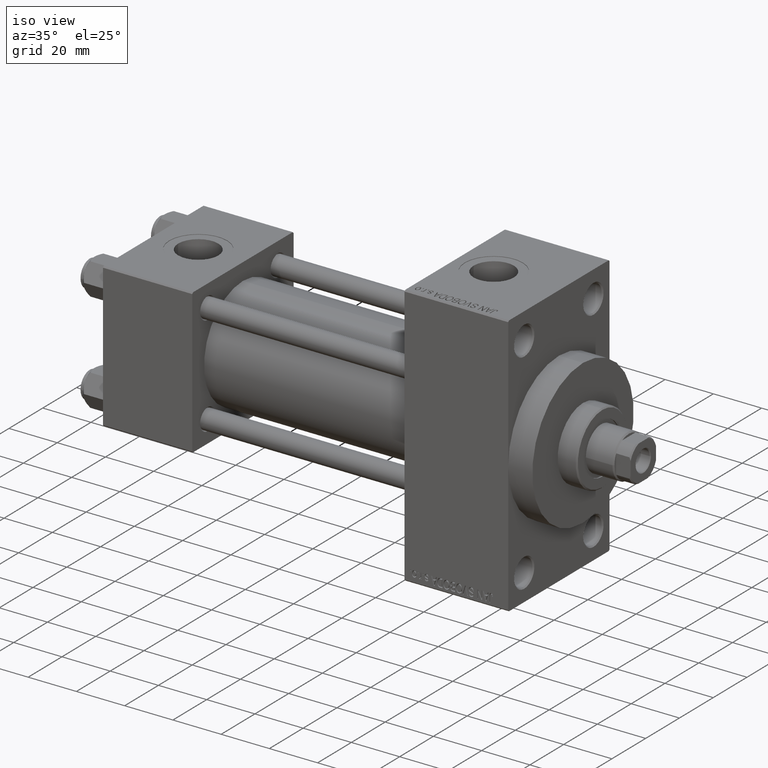
[diagram: clean part render]
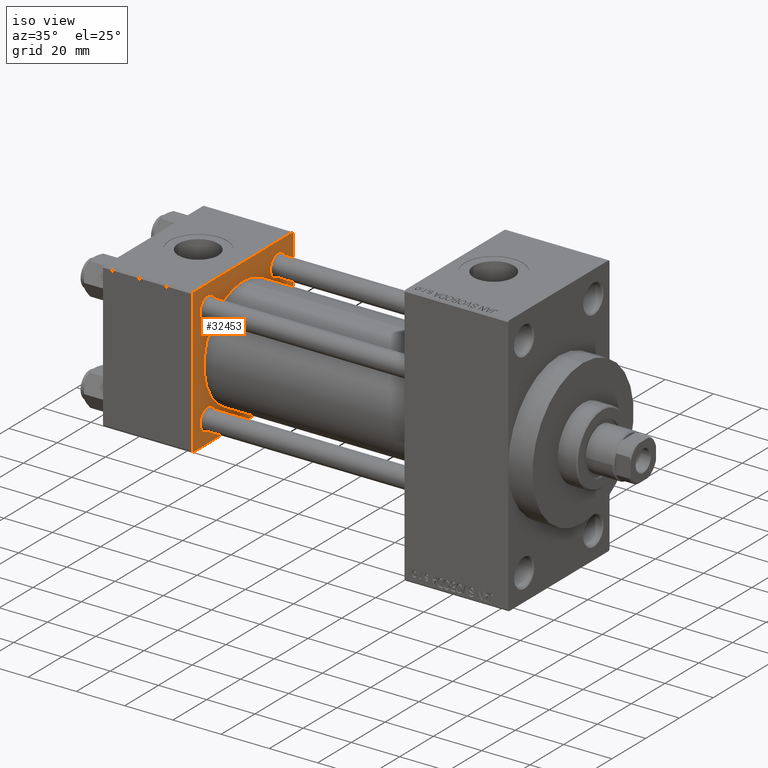
[diagram: same view with one face highlighted and labeled with its STEP entity id]
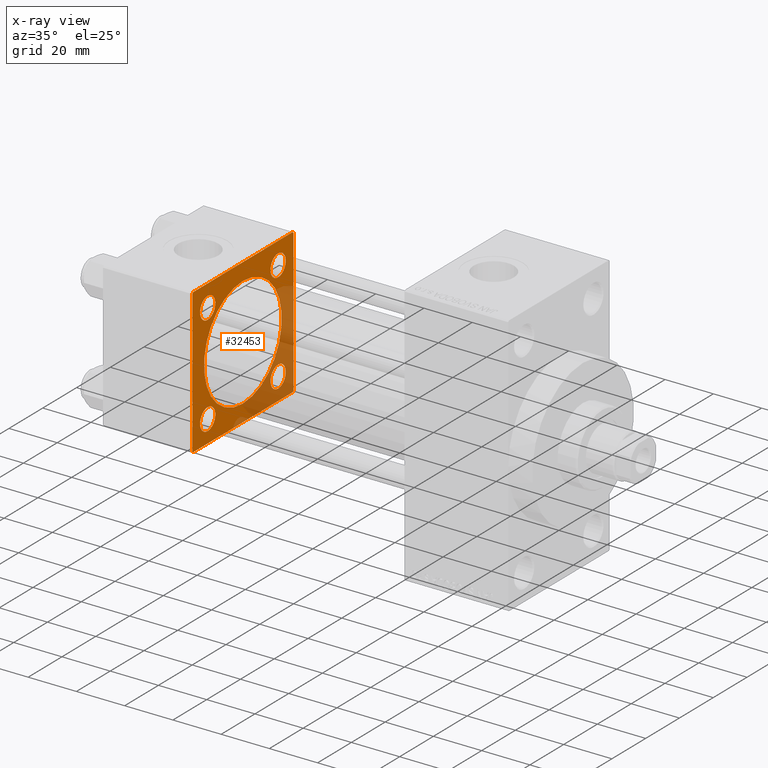
[diagram: x-ray of the same camera — body ghosted, the highlighted face saturated]
A machine part, iso view. The second image highlights one B-rep face of the part: STEP entity #32453.
The next image is the same camera in x-ray: the body ghosted, the highlighted face saturated — about 30% of this face is hidden behind the body in this view.
In plain terms, the highlighted planar face has unit normal (-1, 0, 0).
Its self-contained STEP definition (entity closure, byte-faithful):
#83 = AXIS2_PLACEMENT_3D ( 'NONE', #12860, #42011, #30546 ) ;
#125 = DIRECTION ( 'NONE',  ( 0.000000000000000000, -1.000000000000000000, -1.156482317317871725E-16 ) ) ;
#376 = CARTESIAN_POINT ( 'NONE',  ( 37.00000000000000000, 20.84999999999999787, 16.34999999999996945 ) ) ;
#1126 = DIRECTION ( 'NONE',  ( -1.000000000000000000, 0.000000000000000000, -0.000000000000000000 ) ) ;
#1298 = DIRECTION ( 'NONE',  ( 0.000000000000000000, 0.000000000000000000, 1.000000000000000000 ) ) ;
#1305 = ORIENTED_EDGE ( 'NONE', *, *, #27728, .T. ) ;
#1794 = CARTESIAN_POINT ( 'NONE',  ( 37.00000000000000000, -20.84999999999999076, -20.85000000000000497 ) ) ;
#2285 = EDGE_CURVE ( 'NONE', #9773, #27094, #43550, .T. ) ;
#2668 = EDGE_CURVE ( 'NONE', #14750, #37788, #8470, .T. ) ;
#3233 = CARTESIAN_POINT ( 'NONE',  ( 37.00000000000000000, 29.99999999999999289, 30.00000000000000000 ) ) ;
#3516 = DIRECTION ( 'NONE',  ( 0.000000000000000000, -1.000000000000000000, -1.156482317317871725E-16 ) ) ;
#4010 = CARTESIAN_POINT ( 'NONE',  ( 37.00000000000000000, -20.84999999999999076, 16.34999999999997300 ) ) ;
#4751 = EDGE_CURVE ( 'NONE', #32063, #39989, #6132, .T. ) ;
#5431 = FACE_BOUND ( 'NONE', #45965, .T. ) ;
#5499 = CARTESIAN_POINT ( 'NONE',  ( 37.00000000000000000, 20.84999999999999787, -25.35000000000003340 ) ) ;
#5600 = ORIENTED_EDGE ( 'NONE', *, *, #10545, .T. ) ;
#6006 = EDGE_LOOP ( 'NONE', ( #33298, #26842, #34942, #18190, #30435, #17520, #19745, #34250 ) ) ;
#6066 = DIRECTION ( 'NONE',  ( 0.000000000000000000, 0.000000000000000000, 1.000000000000000000 ) ) ;
#6132 = CIRCLE ( 'NONE', #37406, 23.00000000000000000 ) ;
#6261 = CIRCLE ( 'NONE', #12366, 23.00000000000000000 ) ;
#6714 = EDGE_CURVE ( 'NONE', #30664, #47232, #24500, .T. ) ;
#6986 = EDGE_CURVE ( 'NONE', #23926, #7676, #21102, .T. ) ;
#7201 = CARTESIAN_POINT ( 'NONE',  ( 37.00000000000000000, 20.84999999999999787, -16.34999999999996945 ) ) ;
#7257 = EDGE_LOOP ( 'NONE', ( #19855, #38834 ) ) ;
#7280 = EDGE_CURVE ( 'NONE', #40163, #15332, #14348, .T. ) ;
#7676 = VERTEX_POINT ( 'NONE', #15880 ) ;
#7734 = EDGE_LOOP ( 'NONE', ( #29220, #21842 ) ) ;
#8290 = CARTESIAN_POINT ( 'NONE',  ( 37.00000000000000000, -20.84999999999999076, 20.85000000000000497 ) ) ;
#8428 = CARTESIAN_POINT ( 'NONE',  ( 37.00000000000000711, 2.146024240737016609E-16, -23.00000000000000000 ) ) ;
#8470 = CIRCLE ( 'NONE', #83, 4.500000000000031974 ) ;
#8665 = AXIS2_PLACEMENT_3D ( 'NONE', #19927, #34511, #12765 ) ;
#8825 = EDGE_CURVE ( 'NONE', #39246, #23811, #36702, .T. ) ;
#9212 = VERTEX_POINT ( 'NONE', #41351 ) ;
#9245 = CARTESIAN_POINT ( 'NONE',  ( 37.00000000000000000, 0.000000000000000000, 0.000000000000000000 ) ) ;
#9715 = DIRECTION ( 'NONE',  ( -0.000000000000000000, 0.000000000000000000, 1.000000000000000000 ) ) ;
#9773 = VERTEX_POINT ( 'NONE', #9966 ) ;
#9966 = CARTESIAN_POINT ( 'NONE',  ( 37.00000000000000000, -20.84999999999999076, 25.35000000000003695 ) ) ;
#10100 = CARTESIAN_POINT ( 'NONE',  ( 37.00000000000000000, 29.99999999999999289, 29.50000000000000000 ) ) ;
#10280 = LINE ( 'NONE', #13839, #18460 ) ;
#10545 = EDGE_CURVE ( 'NONE', #27094, #9773, #44869, .T. ) ;
#11333 = AXIS2_PLACEMENT_3D ( 'NONE', #34012, #40964, #1298 ) ;
#11720 = EDGE_CURVE ( 'NONE', #37788, #14750, #18215, .T. ) ;
#12132 = CIRCLE ( 'NONE', #42639, 4.500000000000031974 ) ;
#12366 = AXIS2_PLACEMENT_3D ( 'NONE', #25639, #36884, #18732 ) ;
#12765 = DIRECTION ( 'NONE',  ( 0.000000000000000000, 0.000000000000000000, 1.000000000000000000 ) ) ;
#12860 = CARTESIAN_POINT ( 'NONE',  ( 37.00000000000000000, 20.84999999999999787, 20.85000000000000142 ) ) ;
#12893 = EDGE_CURVE ( 'NONE', #28918, #30723, #12132, .T. ) ;
#12992 = DIRECTION ( 'NONE',  ( -1.000000000000000000, 0.000000000000000000, -0.000000000000000000 ) ) ;
#13349 = DIRECTION ( 'NONE',  ( 1.000000000000000000, -0.000000000000000000, 0.000000000000000000 ) ) ;
#13839 = CARTESIAN_POINT ( 'NONE',  ( 37.00000000000000000, 29.99999999999999289, -29.50000000000000000 ) ) ;
#14348 = LINE ( 'NONE', #28452, #46679 ) ;
#14512 = CARTESIAN_POINT ( 'NONE',  ( 37.00000000000000000, -20.84999999999999076, -20.85000000000000497 ) ) ;
#14570 = CARTESIAN_POINT ( 'NONE',  ( 37.00000000000000000, 20.84999999999999787, -20.85000000000000142 ) ) ;
#14750 = VERTEX_POINT ( 'NONE', #27580 ) ;
#15332 = VERTEX_POINT ( 'NONE', #20769 ) ;
#15880 = CARTESIAN_POINT ( 'NONE',  ( 37.00000000000000000, 29.49999999999999289, 30.00000000000000000 ) ) ;
#15902 = CARTESIAN_POINT ( 'NONE',  ( 37.00000000000000000, -29.50000000000000000, -30.00000000000000711 ) ) ;
#16136 = DIRECTION ( 'NONE',  ( 0.000000000000000000, 0.000000000000000000, 1.000000000000000000 ) ) ;
#16273 = CARTESIAN_POINT ( 'NONE',  ( 37.00000000000000000, -20.84999999999999076, -25.35000000000003695 ) ) ;
#16370 = DIRECTION ( 'NONE',  ( -0.000000000000000000, -0.7071067811865474617, -0.7071067811865474617 ) ) ;
#16461 = CARTESIAN_POINT ( 'NONE',  ( 37.00000000000000711, -2.602085213965210642E-15, 0.000000000000000000 ) ) ;
#16631 = FACE_BOUND ( 'NONE', #43981, .T. ) ;
#16920 = CARTESIAN_POINT ( 'NONE',  ( 37.00000000000000000, 29.99999999999999289, -29.50000000000000000 ) ) ;
#17520 = ORIENTED_EDGE ( 'NONE', *, *, #43076, .T. ) ;
#17782 = CARTESIAN_POINT ( 'NONE',  ( 37.00000000000000000, 29.49999999999999289, 30.00000000000000000 ) ) ;
#18190 = ORIENTED_EDGE ( 'NONE', *, *, #6986, .T. ) ;
#18215 = CIRCLE ( 'NONE', #11333, 4.500000000000031974 ) ;
#18460 = VECTOR ( 'NONE', #38465, 999.9999999999998863 ) ;
#18561 = VECTOR ( 'NONE', #22114, 1000.000000000000114 ) ;
#18732 = DIRECTION ( 'NONE',  ( 0.000000000000000000, 0.000000000000000000, 1.000000000000000000 ) ) ;
#19744 = PLANE ( 'NONE',  #39325 ) ;
#19745 = ORIENTED_EDGE ( 'NONE', *, *, #7280, .T. ) ;
#19809 = EDGE_CURVE ( 'NONE', #39246, #44267, #10280, .T. ) ;
#19855 = ORIENTED_EDGE ( 'NONE', *, *, #24439, .F. ) ;
#19927 = CARTESIAN_POINT ( 'NONE',  ( 37.00000000000000000, 20.84999999999999787, -20.85000000000000142 ) ) ;
#19985 = DIRECTION ( 'NONE',  ( -1.000000000000000000, 0.000000000000000000, -0.000000000000000000 ) ) ;
#20170 = ORIENTED_EDGE ( 'NONE', *, *, #44418, .T. ) ;
#20769 = CARTESIAN_POINT ( 'NONE',  ( 37.00000000000000000, -30.00000000000000000, -29.50000000000001776 ) ) ;
#21102 = LINE ( 'NONE', #17782, #29864 ) ;
#21460 = AXIS2_PLACEMENT_3D ( 'NONE', #1794, #12992, #6066 ) ;
#21842 = ORIENTED_EDGE ( 'NONE', *, *, #2668, .T. ) ;
#22114 = DIRECTION ( 'NONE',  ( 0.000000000000000000, 0.7071067811865474617, -0.7071067811865474617 ) ) ;
#22352 = EDGE_CURVE ( 'NONE', #15332, #23811, #40294, .T. ) ;
#22434 = CARTESIAN_POINT ( 'NONE',  ( 37.00000000000000000, -20.84999999999999076, -16.34999999999997300 ) ) ;
#23617 = DIRECTION ( 'NONE',  ( 0.000000000000000000, 0.000000000000000000, 1.000000000000000000 ) ) ;
#23811 = VERTEX_POINT ( 'NONE', #15902 ) ;
#23926 = VERTEX_POINT ( 'NONE', #10100 ) ;
#24003 = CARTESIAN_POINT ( 'NONE',  ( 37.00000000000000000, -30.00000000000000000, 29.49999999999999289 ) ) ;
#24439 = EDGE_CURVE ( 'NONE', #39989, #32063, #6261, .T. ) ;
#24500 = CIRCLE ( 'NONE', #21460, 4.500000000000031974 ) ;
#24583 = CARTESIAN_POINT ( 'NONE',  ( 37.00000000000000000, -29.50000000000001066, -30.00000000000000711 ) ) ;
#25639 = CARTESIAN_POINT ( 'NONE',  ( 37.00000000000000711, -2.602085213965210642E-15, 0.000000000000000000 ) ) ;
#25781 = DIRECTION ( 'NONE',  ( -1.000000000000000000, 0.000000000000000000, -0.000000000000000000 ) ) ;
#25809 = CARTESIAN_POINT ( 'NONE',  ( 37.00000000000000000, -30.00000000000000000, 29.49999999999999289 ) ) ;
#26286 = VECTOR ( 'NONE', #44866, 1000.000000000000000 ) ;
#26478 = LINE ( 'NONE', #37472, #26286 ) ;
#26842 = ORIENTED_EDGE ( 'NONE', *, *, #19809, .T. ) ;
#27094 = VERTEX_POINT ( 'NONE', #4010 ) ;
#27580 = CARTESIAN_POINT ( 'NONE',  ( 37.00000000000000000, 20.84999999999999787, 25.35000000000003340 ) ) ;
#27617 = FACE_BOUND ( 'NONE', #7257, .T. ) ;
#27728 = EDGE_CURVE ( 'NONE', #30723, #28918, #29237, .T. ) ;
#27855 = FACE_OUTER_BOUND ( 'NONE', #6006, .T. ) ;
#28389 = CIRCLE ( 'NONE', #34501, 4.500000000000031974 ) ;
#28452 = CARTESIAN_POINT ( 'NONE',  ( 37.00000000000000000, -30.00000000000000000, 29.99999999999999289 ) ) ;
#28571 = CARTESIAN_POINT ( 'NONE',  ( 37.00000000000000000, 29.99999999999999289, -30.00000000000000000 ) ) ;
#28918 = VERTEX_POINT ( 'NONE', #5499 ) ;
#28976 = DIRECTION ( 'NONE',  ( 0.000000000000000000, -0.7071067811865474617, 0.7071067811865474617 ) ) ;
#29082 = DIRECTION ( 'NONE',  ( 0.000000000000000000, 0.000000000000000000, 1.000000000000000000 ) ) ;
#29139 = DIRECTION ( 'NONE',  ( -1.000000000000000000, 0.000000000000000000, -0.000000000000000000 ) ) ;
#29220 = ORIENTED_EDGE ( 'NONE', *, *, #11720, .T. ) ;
#29237 = CIRCLE ( 'NONE', #8665, 4.500000000000031974 ) ;
#29260 = EDGE_CURVE ( 'NONE', #23926, #44267, #26478, .T. ) ;
#29864 = VECTOR ( 'NONE', #28976, 1000.000000000000114 ) ;
#30435 = ORIENTED_EDGE ( 'NONE', *, *, #43187, .T. ) ;
#30546 = DIRECTION ( 'NONE',  ( 0.000000000000000000, 0.000000000000000000, 1.000000000000000000 ) ) ;
#30664 = VERTEX_POINT ( 'NONE', #16273 ) ;
#30723 = VERTEX_POINT ( 'NONE', #7201 ) ;
#31129 = ORIENTED_EDGE ( 'NONE', *, *, #2285, .T. ) ;
#31566 = DIRECTION ( 'NONE',  ( 0.000000000000000000, 0.000000000000000000, -1.000000000000000000 ) ) ;
#32063 = VERTEX_POINT ( 'NONE', #8428 ) ;
#32119 = LINE ( 'NONE', #3233, #42106 ) ;
#32176 = VECTOR ( 'NONE', #16370, 1000.000000000000114 ) ;
#32453 = ADVANCED_FACE ( 'NONE', ( #5431, #16631, #42438, #38616, #27617, #27855 ), #19744, .F. ) ;
#33298 = ORIENTED_EDGE ( 'NONE', *, *, #8825, .F. ) ;
#34012 = CARTESIAN_POINT ( 'NONE',  ( 37.00000000000000000, 20.84999999999999787, 20.85000000000000142 ) ) ;
#34250 = ORIENTED_EDGE ( 'NONE', *, *, #22352, .T. ) ;
#34501 = AXIS2_PLACEMENT_3D ( 'NONE', #14512, #44139, #29082 ) ;
#34511 = DIRECTION ( 'NONE',  ( -1.000000000000000000, 0.000000000000000000, -0.000000000000000000 ) ) ;
#34917 = ORIENTED_EDGE ( 'NONE', *, *, #12893, .T. ) ;
#34942 = ORIENTED_EDGE ( 'NONE', *, *, #29260, .F. ) ;
#36702 = LINE ( 'NONE', #28571, #46714 ) ;
#36742 = CARTESIAN_POINT ( 'NONE',  ( 37.00000000000000000, 29.49999999999997868, -30.00000000000000000 ) ) ;
#36783 = DIRECTION ( 'NONE',  ( 0.000000000000000000, 0.000000000000000000, 1.000000000000000000 ) ) ;
#36884 = DIRECTION ( 'NONE',  ( 1.000000000000000000, -0.000000000000000000, 0.000000000000000000 ) ) ;
#37406 = AXIS2_PLACEMENT_3D ( 'NONE', #16461, #13349, #23617 ) ;
#37472 = CARTESIAN_POINT ( 'NONE',  ( 37.00000000000000000, 29.99999999999999289, 30.00000000000000000 ) ) ;
#37788 = VERTEX_POINT ( 'NONE', #376 ) ;
#38113 = AXIS2_PLACEMENT_3D ( 'NONE', #8290, #1126, #16136 ) ;
#38465 = DIRECTION ( 'NONE',  ( -0.000000000000000000, 0.7071067811865574537, 0.7071067811865376918 ) ) ;
#38616 = FACE_BOUND ( 'NONE', #7734, .T. ) ;
#38834 = ORIENTED_EDGE ( 'NONE', *, *, #4751, .F. ) ;
#39246 = VERTEX_POINT ( 'NONE', #36742 ) ;
#39325 = AXIS2_PLACEMENT_3D ( 'NONE', #9245, #19985, #9715 ) ;
#39659 = DIRECTION ( 'NONE',  ( 0.000000000000000000, 0.000000000000000000, 1.000000000000000000 ) ) ;
#39989 = VERTEX_POINT ( 'NONE', #42314 ) ;
#40163 = VERTEX_POINT ( 'NONE', #25809 ) ;
#40294 = LINE ( 'NONE', #24583, #18561 ) ;
#40964 = DIRECTION ( 'NONE',  ( -1.000000000000000000, 0.000000000000000000, -0.000000000000000000 ) ) ;
#41061 = AXIS2_PLACEMENT_3D ( 'NONE', #43948, #25781, #36783 ) ;
#41351 = CARTESIAN_POINT ( 'NONE',  ( 37.00000000000000000, -29.49999999999998579, 29.99999999999999289 ) ) ;
#42011 = DIRECTION ( 'NONE',  ( -1.000000000000000000, 0.000000000000000000, -0.000000000000000000 ) ) ;
#42106 = VECTOR ( 'NONE', #125, 1000.000000000000000 ) ;
#42314 = CARTESIAN_POINT ( 'NONE',  ( 37.00000000000000711, -2.602085213965210642E-15, 23.00000000000000000 ) ) ;
#42407 = LINE ( 'NONE', #24003, #32176 ) ;
#42438 = FACE_BOUND ( 'NONE', #46176, .T. ) ;
#42639 = AXIS2_PLACEMENT_3D ( 'NONE', #14570, #29139, #39659 ) ;
#43076 = EDGE_CURVE ( 'NONE', #9212, #40163, #42407, .T. ) ;
#43187 = EDGE_CURVE ( 'NONE', #7676, #9212, #32119, .T. ) ;
#43550 = CIRCLE ( 'NONE', #38113, 4.500000000000031974 ) ;
#43948 = CARTESIAN_POINT ( 'NONE',  ( 37.00000000000000000, -20.84999999999999076, 20.85000000000000497 ) ) ;
#43981 = EDGE_LOOP ( 'NONE', ( #34917, #1305 ) ) ;
#44139 = DIRECTION ( 'NONE',  ( -1.000000000000000000, 0.000000000000000000, -0.000000000000000000 ) ) ;
#44267 = VERTEX_POINT ( 'NONE', #16920 ) ;
#44418 = EDGE_CURVE ( 'NONE', #47232, #30664, #28389, .T. ) ;
#44866 = DIRECTION ( 'NONE',  ( 0.000000000000000000, 0.000000000000000000, -1.000000000000000000 ) ) ;
#44869 = CIRCLE ( 'NONE', #41061, 4.500000000000031974 ) ;
#45245 = ORIENTED_EDGE ( 'NONE', *, *, #6714, .T. ) ;
#45965 = EDGE_LOOP ( 'NONE', ( #45245, #20170 ) ) ;
#46176 = EDGE_LOOP ( 'NONE', ( #5600, #31129 ) ) ;
#46679 = VECTOR ( 'NONE', #31566, 1000.000000000000000 ) ;
#46714 = VECTOR ( 'NONE', #3516, 1000.000000000000000 ) ;
#47232 = VERTEX_POINT ( 'NONE', #22434 ) ;